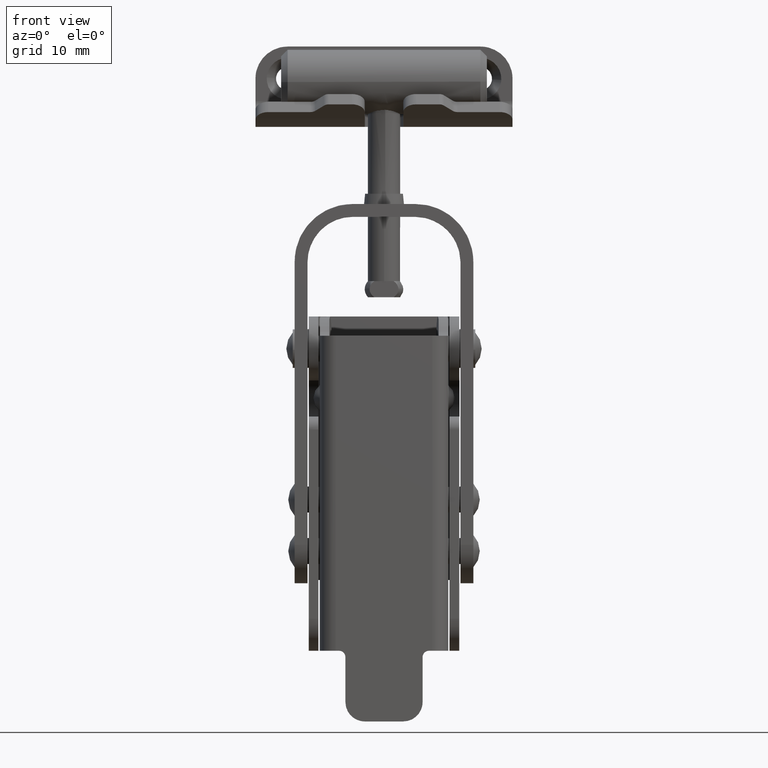
[diagram: clean part render]
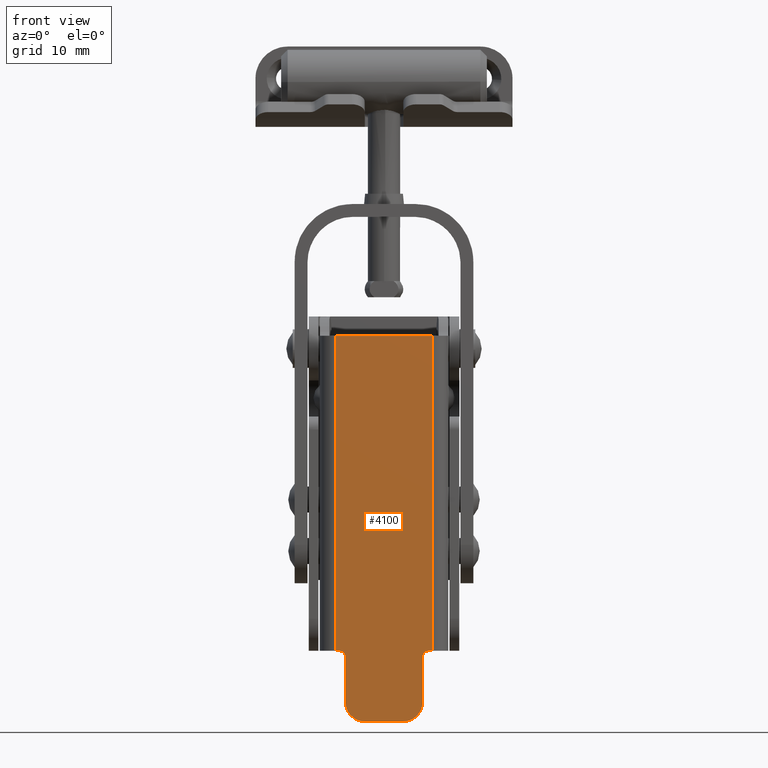
[diagram: same view with one face highlighted and labeled with its STEP entity id]
A machine part, front view. The second image highlights one B-rep face of the part: STEP entity #4100.
In plain terms, the highlighted face is a freeform B-spline surface patch.
Its self-contained STEP definition (entity closure, byte-faithful):
#2712=CARTESIAN_POINT('',(-6.000000000083560,-18.000000000004452,-39.999999996449802));
#2713=VERTEX_POINT('',#2712);
#2714=CARTESIAN_POINT('',(-7.000000000083050,-18.000000000004452,-38.999999996449802));
#2715=VERTEX_POINT('',#2714);
#2716=CARTESIAN_POINT('',(-6.000000000083560,-18.000000000004452,-39.999999996449802));
#2717=CARTESIAN_POINT('',(-6.000000000083559,-18.000000000004459,-38.999999996449809));
#2718=CARTESIAN_POINT('',(-7.000000000083560,-18.000000000004452,-38.999999996449802));
#2726=(BOUNDED_CURVE()B_SPLINE_CURVE(2,(#2716,#2717,#2718),.UNSPECIFIED.,.F.,.U.)CURVE()GEOMETRIC_REPRESENTATION_ITEM()QUASI_UNIFORM_CURVE()RATIONAL_B_SPLINE_CURVE((1.0,0.707106781186548,1.0))REPRESENTATION_ITEM(''));
#2727=EDGE_CURVE('',#2713,#2715,#2726,.T.);
#2764=CARTESIAN_POINT('',(-7.499999999997500,-18.000000000004452,-38.999999996449553));
#2765=VERTEX_POINT('',#2764);
#2766=CARTESIAN_POINT('',(-7.499999999997500,-18.000000000004452,-38.999999996449553));
#2767=CARTESIAN_POINT('',(-7.000000000083050,-18.000000000004452,-38.999999996449802));
#2768=QUASI_UNIFORM_CURVE('',1,(#2766,#2767),.UNSPECIFIED.,.F.,.U.);
#2769=EDGE_CURVE('',#2765,#2715,#2768,.T.);
#2827=CARTESIAN_POINT('',(5.999999999911100,-18.000000000004452,-46.999999996460097));
#2828=VERTEX_POINT('',#2827);
#2829=CARTESIAN_POINT('',(5.999999999922130,-18.000000000004452,-39.999999996455848));
#2830=VERTEX_POINT('',#2829);
#2831=CARTESIAN_POINT('',(5.999999999911100,-18.000000000004452,-46.999999996460097));
#2832=CARTESIAN_POINT('',(5.999999999922130,-18.000000000004452,-39.999999996455848));
#2833=QUASI_UNIFORM_CURVE('',1,(#2831,#2832),.UNSPECIFIED.,.F.,.U.);
#2834=EDGE_CURVE('',#2828,#2830,#2833,.T.);
#2872=CARTESIAN_POINT('',(2.999999999909505,-18.000000000004452,-49.999999996455600));
#2873=VERTEX_POINT('',#2872);
#2874=CARTESIAN_POINT('',(2.999999999909505,-18.000000000004452,-49.999999996455600));
#2875=CARTESIAN_POINT('',(5.999999999906597,-18.000000000004452,-49.999999996457184));
#2876=CARTESIAN_POINT('',(5.999999999911095,-18.000000000004452,-46.999999996460097));
#2884=(BOUNDED_CURVE()B_SPLINE_CURVE(2,(#2874,#2875,#2876),.UNSPECIFIED.,.F.,.U.)CURVE()GEOMETRIC_REPRESENTATION_ITEM()QUASI_UNIFORM_CURVE()RATIONAL_B_SPLINE_CURVE((1.0,0.707106781186890,1.0))REPRESENTATION_ITEM(''));
#2885=EDGE_CURVE('',#2873,#2828,#2884,.T.);
#2916=CARTESIAN_POINT('',(-3.000000000085180,-18.000000000004452,-49.999999996452203));
#2917=VERTEX_POINT('',#2916);
#2918=CARTESIAN_POINT('',(-3.000000000085180,-18.000000000004452,-49.999999996452203));
#2919=CARTESIAN_POINT('',(2.999999999909505,-18.000000000004452,-49.999999996455600));
#2920=QUASI_UNIFORM_CURVE('',1,(#2918,#2919),.UNSPECIFIED.,.F.,.U.);
#2921=EDGE_CURVE('',#2917,#2873,#2920,.T.);
#2953=CARTESIAN_POINT('',(-6.000000000083560,-18.000000000004452,-46.999999996452097));
#2954=VERTEX_POINT('',#2953);
#2955=CARTESIAN_POINT('',(-6.000000000083560,-18.000000000004452,-46.999999996452097));
#2956=CARTESIAN_POINT('',(-6.000000000083561,-18.000000000004452,-49.999999996450477));
#2957=CARTESIAN_POINT('',(-3.000000000085180,-18.000000000004452,-49.999999996452097));
#2965=(BOUNDED_CURVE()B_SPLINE_CURVE(2,(#2955,#2956,#2957),.UNSPECIFIED.,.F.,.U.)CURVE()GEOMETRIC_REPRESENTATION_ITEM()QUASI_UNIFORM_CURVE()RATIONAL_B_SPLINE_CURVE((1.0,0.707106781186738,1.0))REPRESENTATION_ITEM(''));
#2966=EDGE_CURVE('',#2954,#2917,#2965,.T.);
#2997=CARTESIAN_POINT('',(-6.000000000083560,-18.000000000004452,-39.999999996449802));
#2998=CARTESIAN_POINT('',(-6.000000000083560,-18.000000000004452,-46.999999996452097));
#2999=QUASI_UNIFORM_CURVE('',1,(#2997,#2998),.UNSPECIFIED.,.F.,.U.);
#3000=EDGE_CURVE('',#2713,#2954,#2999,.T.);
#3604=CARTESIAN_POINT('',(-7.499999999997500,-18.000000000004452,10.000000003564759));
#3605=VERTEX_POINT('',#3604);
#3625=CARTESIAN_POINT('',(-7.499999999997500,-18.000000000004452,10.000000003564759));
#3626=CARTESIAN_POINT('',(-7.499999999997500,-18.000000000004452,-38.999999996449553));
#3627=QUASI_UNIFORM_CURVE('',1,(#3625,#3626),.UNSPECIFIED.,.F.,.U.);
#3628=EDGE_CURVE('',#3605,#2765,#3627,.T.);
#3647=CARTESIAN_POINT('',(7.499999999997500,-18.000000000004452,10.000000003564759));
#3648=VERTEX_POINT('',#3647);
#3664=CARTESIAN_POINT('',(7.499999999997500,-18.000000000004452,-38.999999996457753));
#3665=VERTEX_POINT('',#3664);
#3666=CARTESIAN_POINT('',(7.499999999997500,-18.000000000004452,-38.999999996457753));
#3667=CARTESIAN_POINT('',(7.499999999997500,-18.000000000004452,10.000000003564759));
#3668=QUASI_UNIFORM_CURVE('',1,(#3666,#3667),.UNSPECIFIED.,.F.,.U.);
#3669=EDGE_CURVE('',#3665,#3648,#3668,.T.);
#4059=CARTESIAN_POINT('',(-8.249249970924343,-18.000000000004452,12.996999887274130));
#4060=CARTESIAN_POINT('',(8.249250373255693,-18.000000000004452,12.996999887274130));
#4061=CARTESIAN_POINT('',(-8.249249970924343,-18.000000000004452,-52.997001489490380));
#4062=CARTESIAN_POINT('',(8.249250373255693,-18.000000000004452,-52.997001489490380));
#4063=B_SPLINE_SURFACE_WITH_KNOTS('',1,1,((#4059,#4061),(#4060,#4062)),.UNSPECIFIED.,.F.,.F.,.U.,(2,2),(2,2),(0.0,16.498500344180041),(0.0,65.994001376764515),.UNSPECIFIED.);
#4064=CARTESIAN_POINT('',(6.999999999922690,-18.000000000004452,-38.999999996457447));
#4065=VERTEX_POINT('',#4064);
#4066=CARTESIAN_POINT('',(6.999999999922690,-18.000000000004452,-38.999999996457447));
#4067=CARTESIAN_POINT('',(7.499999999997500,-18.000000000004452,-38.999999996457753));
#4068=QUASI_UNIFORM_CURVE('',1,(#4066,#4067),.UNSPECIFIED.,.F.,.U.);
#4069=EDGE_CURVE('',#4065,#3665,#4068,.T.);
#4070=ORIENTED_EDGE('',*,*,#4069,.T.);
#4071=ORIENTED_EDGE('',*,*,#3669,.T.);
#4072=CARTESIAN_POINT('',(7.499999999997500,-18.000000000004452,10.000000003564759));
#4073=CARTESIAN_POINT('',(-7.499999999997500,-18.000000000004452,10.000000003564759));
#4074=QUASI_UNIFORM_CURVE('',1,(#4072,#4073),.UNSPECIFIED.,.F.,.U.);
#4075=EDGE_CURVE('',#3648,#3605,#4074,.T.);
#4076=ORIENTED_EDGE('',*,*,#4075,.T.);
#4077=ORIENTED_EDGE('',*,*,#3628,.T.);
#4078=ORIENTED_EDGE('',*,*,#2769,.T.);
#4079=ORIENTED_EDGE('',*,*,#2727,.F.);
#4080=ORIENTED_EDGE('',*,*,#3000,.T.);
#4081=ORIENTED_EDGE('',*,*,#2966,.T.);
#4082=ORIENTED_EDGE('',*,*,#2921,.T.);
#4083=ORIENTED_EDGE('',*,*,#2885,.T.);
#4084=ORIENTED_EDGE('',*,*,#2834,.T.);
#4085=CARTESIAN_POINT('',(6.999999999922690,-18.000000000004452,-38.999999996457447));
#4086=CARTESIAN_POINT('',(5.999999999923731,-18.000000000004452,-38.999999996457454));
#4087=CARTESIAN_POINT('',(5.999999999922130,-18.000000000004452,-39.999999996455848));
#4095=(BOUNDED_CURVE()B_SPLINE_CURVE(2,(#4085,#4086,#4087),.UNSPECIFIED.,.F.,.U.)CURVE()GEOMETRIC_REPRESENTATION_ITEM()QUASI_UNIFORM_CURVE()RATIONAL_B_SPLINE_CURVE((1.0,0.707106781187114,1.0))REPRESENTATION_ITEM(''));
#4096=EDGE_CURVE('',#4065,#2830,#4095,.T.);
#4097=ORIENTED_EDGE('',*,*,#4096,.F.);
#4098=EDGE_LOOP('',(#4070,#4071,#4076,#4077,#4078,#4079,#4080,#4081,#4082,#4083,#4084,#4097));
#4099=FACE_OUTER_BOUND('',#4098,.T.);
#4100=ADVANCED_FACE('',(#4099),#4063,.F.);